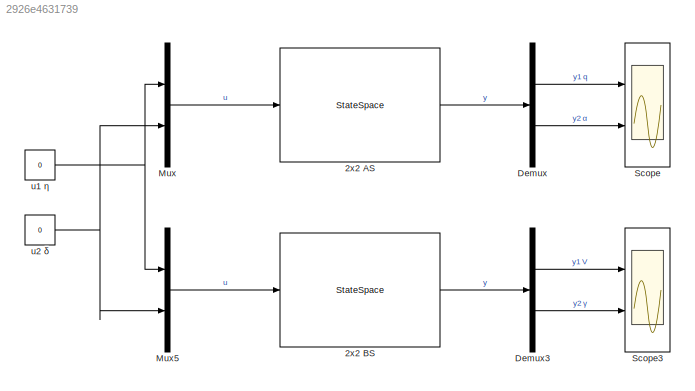
MODEL slx_2926e4631739
KIND model
CONFIG AbsTol = auto
CONFIG EnableMultiTasking = off
CONFIG FixedStep = auto
CONFIG MaxStep = auto
CONFIG MinStep = auto
CONFIG RelTol = 1e-3
CONFIG SampleTimeConstraint = Unconstrained
CONFIG SolverName = VariableStepAuto
CONFIG StartTime = 0.0
CONFIG StopTime = 10.0
BLOCK [StateSpace] 2x2 AS
  A = AS(1).A
  B = AS(1).B
  C = eye(2,2)
  ContinuousStateAttributes = { 'q' , 'alpha' }
  D = zeros(2,2)
  InitialCondition = [0; BFZ(1).alpha]
  ParameterTunability = Unconstrained
  Ports = [1, 1]
BLOCK [StateSpace] 2x2 BS
  A = BS(1).A
  AllowTunableDMatrix = on
  B = BS(1).B
  C = eye(2,2)
  ContinuousStateAttributes = { 'V' , 'gamma' }
  D = zeros(2,2)
  InitialCondition = [0; BFZ(1).V]
  ParameterTunability = Unconstrained
  Ports = [1, 1]
BLOCK [Demux] Demux
  Outputs = 2
  Ports = [1, 2]
BLOCK [Demux] Demux3
  Outputs = 2
  Ports = [1, 2]
BLOCK [Mux] Mux
  DisplayOption = bar
  Inputs = 2
  Ports = [2, 1]
BLOCK [Mux] Mux5
  DisplayOption = bar
  Inputs = 2
  Ports = [2, 1]
BLOCK [Scope] Scope
  Floating = off
  NumInputPorts = 2
  Ports = [2]
  ScopeSpecificationString = Simulink.scopes.TimeScopeBlockCfg('CurrentConfiguration', extmgr.ConfigurationSet(extmgr.Configuration('Core','General UI',true),extmgr.Configuration('Core','Source UI',true),extmgr.Configuration('Sources','WiredSimulink',true,'DataLoggingVariableName','ScopeData1'),extmgr.Configuration('Visuals','Time Domain',true,'SerializedDisplays',{struct('MinYLimReal','-0.01117','MaxYLimReal','0.01111','YLab...<+1423ch>
BLOCK [Scope] Scope3
  Floating = off
  NumInputPorts = 2
  Ports = [2]
  ScopeSpecificationString = Simulink.scopes.TimeScopeBlockCfg('CurrentConfiguration', extmgr.ConfigurationSet(extmgr.Configuration('Core','General UI',true),extmgr.Configuration('Core','Source UI',true),extmgr.Configuration('Sources','WiredSimulink',true),extmgr.Configuration('Visuals','Time Domain',true,'SerializedDisplays',{struct('MinYLimReal','-32083.34381','MaxYLimReal','3821.85175','YLabelReal','','MinYLimMag','   0.00...<+1412ch>
BLOCK [Constant] u1 η
  Value = 0
BLOCK [Constant] u2 δ
  Value = 0
LINE 2x2 AS:1 -> Demux:1
LINE 2x2 BS:1 -> Demux3:1
LINE Demux3:1 -> Scope3:1
LINE Demux3:2 -> Scope3:2
LINE Demux:1 -> Scope:1
LINE Demux:2 -> Scope:2
LINE Mux5:1 -> 2x2 BS:1
LINE Mux:1 -> 2x2 AS:1
NET u1 η:1 -> Mux5:1, Mux:1
NET u2 δ:1 -> Mux5:2, Mux:2
note: NET lines group one-source signal fan-out (src -> all destinations, sorted); 1:1 wires keep LINE
